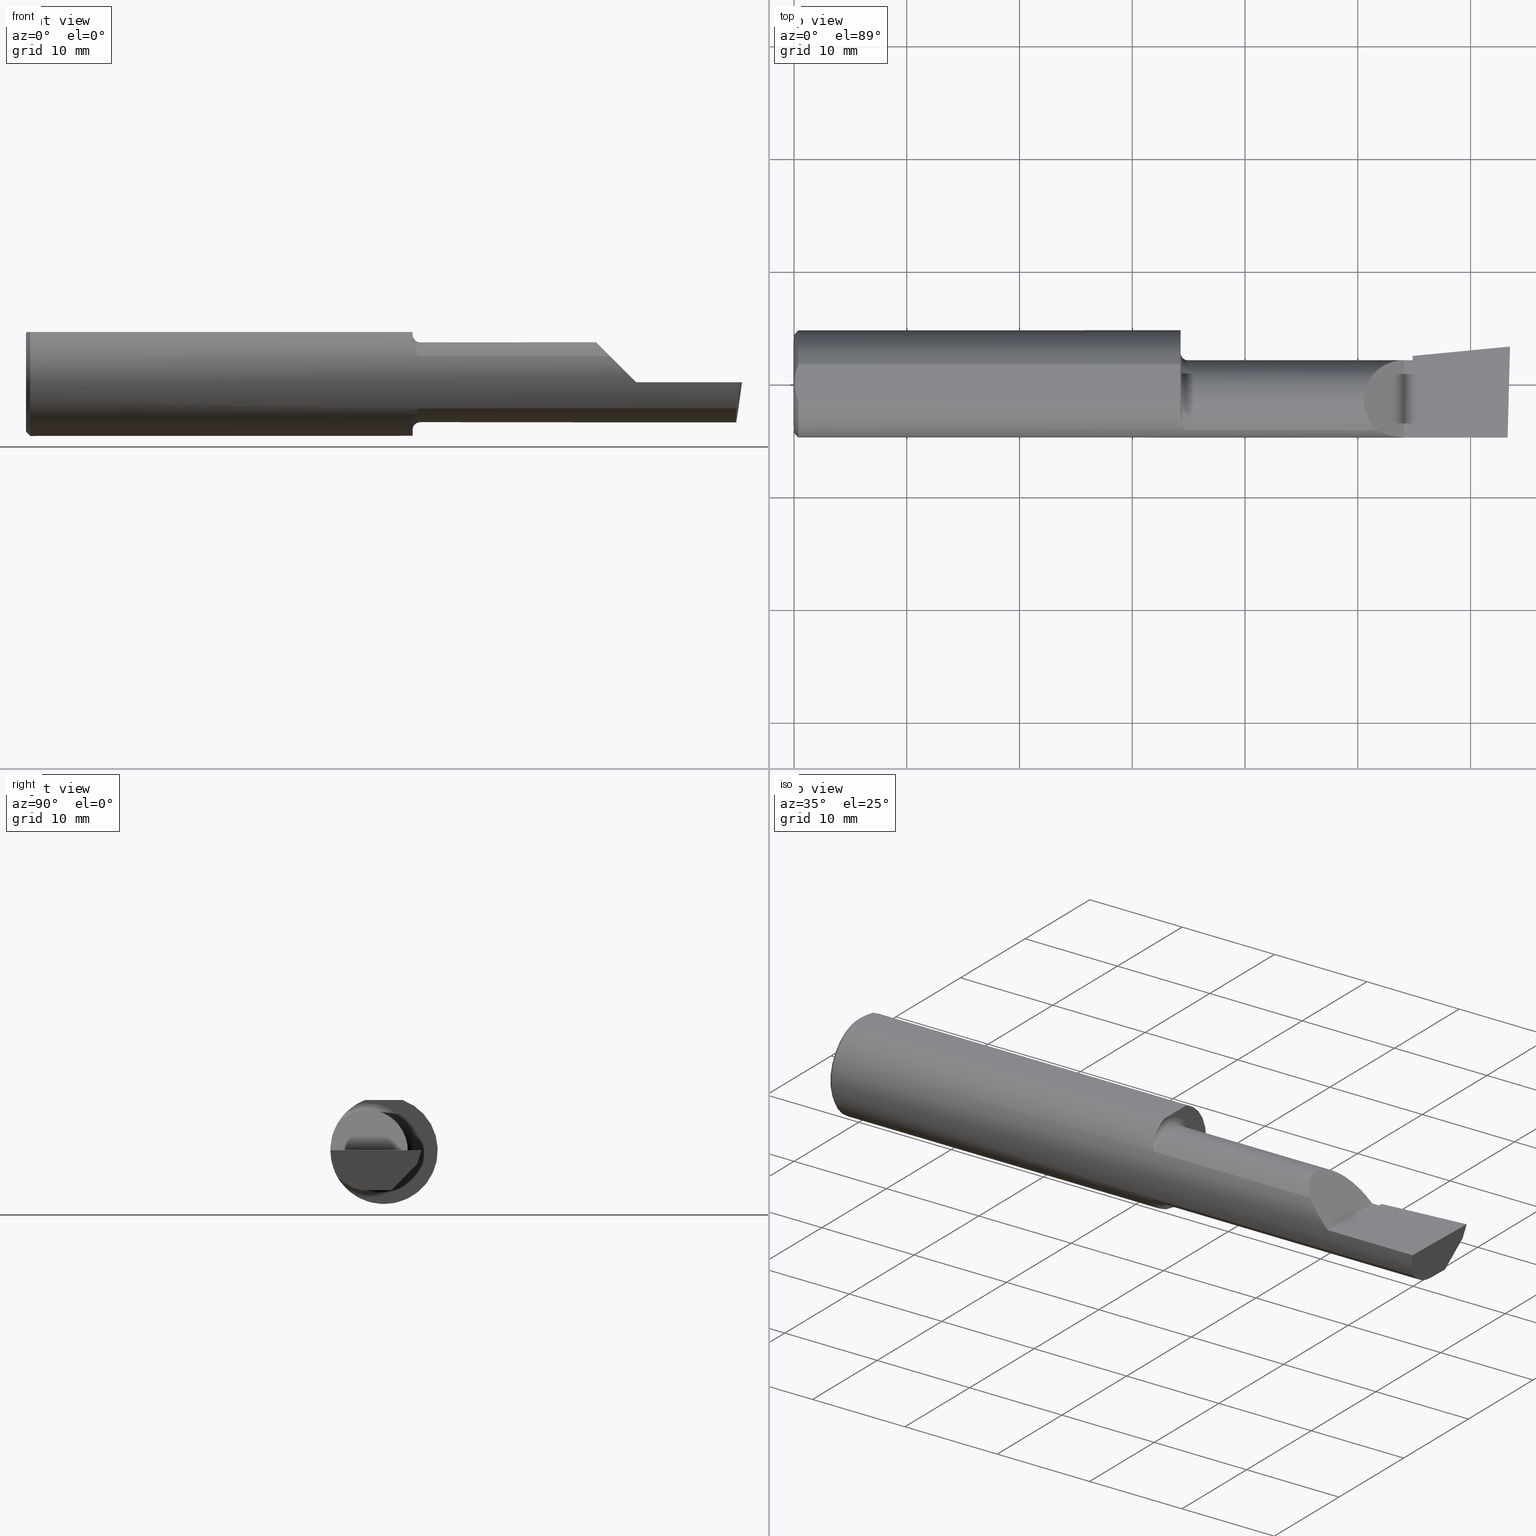
[diagram: canonical four-view strip — front | top / right | iso, engineering-drawing reading convention]
A machine part, canonical four-view strip (front | top / right | iso — engineering-drawing reading convention). The complete STEP part file that produces these views, byte-faithful:
ISO-10303-21;
HEADER;
FILE_DESCRIPTION (( 'STEP AP203' ),
    '1' );
FILE_NAME ('217483-B3201100.STEP',
    '2024-04-26T19:22:36',
    ( '' ),
    ( '' ),
    'SwSTEP 2.0',
    'SolidWorks 2022',
    '' );
FILE_SCHEMA (( 'CONFIG_CONTROL_DESIGN' ));
ENDSEC;

DATA;
#1 = CARTESIAN_POINT ( 'NONE',  ( 1.375000000000000000, -0.05740000000000000657, 0.000000000000000000 ) ) ;
#2 = EDGE_CURVE ( 'NONE', #565, #398, #52, .T. ) ;
#3 = B_SPLINE_CURVE_WITH_KNOTS ( 'NONE', 3,
 ( #516, #86, #189, #231, #9, #534, #380, #150, #422, #442, #573, #376, #489, #249 ),
 .UNSPECIFIED., .F., .F.,
 ( 4, 2, 2, 2, 2, 2, 4 ),
 ( 0.0002471551878304217224, 0.0008987327522055606026, 0.001550310316580699645, 0.002201887880955838254, 0.002527676663143406475, 0.002690571054237190368, 0.002853465445330974262 ),
 .UNSPECIFIED. ) ;
#4 = VECTOR ( 'NONE', #335, 39.37007874015748143 ) ;
#5 = CARTESIAN_POINT ( 'NONE',  ( 2.160000000000000142, -0.2500000000000000555, 1.034430765243970311E-16 ) ) ;
#6 = ADVANCED_FACE ( 'NONE', ( #515 ), #85, .F. ) ;
#7 = DIRECTION ( 'NONE',  ( 0.1053106618240635256, 0.6976485211320200275, 0.7086580314005359593 ) ) ;
#8 = ORIENTED_EDGE ( 'NONE', *, *, #126, .F. ) ;
#9 = CARTESIAN_POINT ( 'NONE',  ( 1.353025912205683357, -0.1310442973014113721, 0.1341609063345044484 ) ) ;
#10 = LINE ( 'NONE', #5, #608 ) ;
#11 = EDGE_LOOP ( 'NONE', ( #216, #279, #407, #417, #600, #201, #322, #625, #343, #109, #19, #45, #177 ) ) ;
#12 = VECTOR ( 'NONE', #104, 39.37007874015748854 ) ;
#13 = APPROVAL_STATUS ( 'not_yet_approved' ) ;
#14 = ADVANCED_FACE ( 'NONE', ( #309 ), #504, .F. ) ;
#15 = CARTESIAN_POINT ( 'NONE',  ( 2.481080296960508580, -0.1635956445993030639, -0.09130436773856169530 ) ) ;
#16 = EDGE_LOOP ( 'NONE', ( #603, #275, #510, #305, #207 ) ) ;
#17 = APPROVAL_STATUS ( 'not_yet_approved' ) ;
#18 = CARTESIAN_POINT ( 'NONE',  ( 2.491672876940991710, -0.1873499999999999888, 6.915950918908297591E-17 ) ) ;
#19 = ORIENTED_EDGE ( 'NONE', *, *, #462, .T. ) ;
#20 = CARTESIAN_POINT ( 'NONE',  ( 2.160000000000000142, -0.05739999999999999963, -0.1400500000000000633 ) ) ;
#21 = ADVANCED_FACE ( 'NONE', ( #364 ), #557, .T. ) ;
#22 = ORIENTED_EDGE ( 'NONE', *, *, #593, .F. ) ;
#23 = PERSON_AND_ORGANIZATION_ROLE ( 'design_supplier' ) ;
#24 = AXIS2_PLACEMENT_3D ( 'NONE', #64, #162, #592 ) ;
#25 = LINE ( 'NONE', #218, #377 ) ;
#26 = ORIENTED_EDGE ( 'NONE', *, *, #80, .T. ) ;
#27 = VECTOR ( 'NONE', #503, 39.37007874015748854 ) ;
#28 = LINE ( 'NONE', #599, #103 ) ;
#29 = ORIENTED_EDGE ( 'NONE', *, *, #114, .F. ) ;
#30 = LINE ( 'NONE', #225, #219 ) ;
#31 = ORIENTED_EDGE ( 'NONE', *, *, #32, .F. ) ;
#32 = EDGE_CURVE ( 'NONE', #538, #379, #523, .T. ) ;
#33 = VECTOR ( 'NONE', #134, 39.37007874015748143 ) ;
#34 = CARTESIAN_POINT ( 'NONE',  ( 2.160000000000000142, -0.05739999999999999963, 0.000000000000000000 ) ) ;
#35 = LINE ( 'NONE', #388, #362 ) ;
#36 = VERTEX_POINT ( 'NONE', #385 ) ;
#37 = APPROVAL_STATUS ( 'not_yet_approved' ) ;
#38 = AXIS2_PLACEMENT_3D ( 'NONE', #266, #349, #458 ) ;
#39 = CARTESIAN_POINT ( 'NONE',  ( 0.01499999999999999424, 0.000000000000000000, 0.000000000000000000 ) ) ;
#40 = DIRECTION ( 'NONE',  ( 0.000000000000000000, 0.000000000000000000, 1.000000000000000000 ) ) ;
#41 = ADVANCED_FACE ( 'NONE', ( #332 ), #567, .T. ) ;
#42 = EDGE_LOOP ( 'NONE', ( #269, #252, #562, #97 ) ) ;
#43 = CARTESIAN_POINT ( 'NONE',  ( 0.01499999999999999424, 0.000000000000000000, -0.1873499999999999888 ) ) ;
#44 = DIRECTION ( 'NONE',  ( 0.000000000000000000, 0.6963153109074925462, 0.7177360153954948085 ) ) ;
#45 = ORIENTED_EDGE ( 'NONE', *, *, #159, .F. ) ;
#46 = CIRCLE ( 'NONE', #325, 0.1400500000000000356 ) ;
#47 = CARTESIAN_POINT ( 'NONE',  ( 1.358068207442170383, -0.1478915270140208904, -0.1153063024254926405 ) ) ;
#48 = DIRECTION ( 'NONE',  ( -0.09165774897393341725, 0.9519021185660614393, -0.2923717047227303856 ) ) ;
#49 = EDGE_CURVE ( 'NONE', #288, #395, #148, .T. ) ;
#50 = CARTESIAN_POINT ( 'NONE',  ( 2.476787929832031221, -0.09887019258091189755, -0.1400500000000000078 ) ) ;
#51 = DIRECTION ( 'NONE',  ( -1.000000000000000000, -6.829619984160658046E-18, -0.000000000000000000 ) ) ;
#52 = CIRCLE ( 'NONE', #406, 0.1400500000000000356 ) ;
#53 = AXIS2_PLACEMENT_3D ( 'NONE', #509, #551, #556 ) ;
#54 = CARTESIAN_POINT ( 'NONE',  ( 2.160000000000000142, 0.09791172361284175563, 3.308097179827818849E-16 ) ) ;
#55 = ORIENTED_EDGE ( 'NONE', *, *, #495, .F. ) ;
#56 = DIRECTION ( 'NONE',  ( 0.000000000000000000, -1.000000000000000000, 0.000000000000000000 ) ) ;
#57 = CYLINDRICAL_SURFACE ( 'NONE', #525, 0.1400499999999999801 ) ;
#58 = VERTEX_POINT ( 'NONE', #526 ) ;
#59 = ADVANCED_FACE ( 'NONE', ( #96 ), #242, .T. ) ;
#60 = PERSON_AND_ORGANIZATION_ROLE ( 'design_owner' ) ;
#61 = LOCAL_TIME ( 12, 22, 36.00000000000000000, #419 ) ;
#62 = DIRECTION ( 'NONE',  ( -1.000000000000000000, -6.829619984160658046E-18, -0.000000000000000000 ) ) ;
#63 = ORIENTED_EDGE ( 'NONE', *, *, #49, .F. ) ;
#64 = CARTESIAN_POINT ( 'NONE',  ( 2.475850273311264615, -0.1244607267090816621, -0.1422282308645907711 ) ) ;
#65 = ORIENTED_EDGE ( 'NONE', *, *, #524, .F. ) ;
#66 = PERSON_AND_ORGANIZATION ( #198, #387 ) ;
#67 = EDGE_CURVE ( 'NONE', #124, #271, #400, .T. ) ;
#68 = PLANE ( 'NONE',  #94 ) ;
#69 = ORIENTED_EDGE ( 'NONE', *, *, #507, .F. ) ;
#70 =( GEOMETRIC_REPRESENTATION_CONTEXT ( 3 ) GLOBAL_UNCERTAINTY_ASSIGNED_CONTEXT ( ( #182 ) ) GLOBAL_UNIT_ASSIGNED_CONTEXT ( ( #404, #452, #595 ) ) REPRESENTATION_CONTEXT ( 'NONE', 'WORKASPACE' ) );
#71 = PERSON_AND_ORGANIZATION ( #198, #387 ) ;
#72 = DIRECTION ( 'NONE',  ( 0.000000000000000000, 0.000000000000000000, 1.000000000000000000 ) ) ;
#73 = APPROVAL ( #13, 'UNSPECIFIED' ) ;
#74 = VERTEX_POINT ( 'NONE', #433 ) ;
#75 = CARTESIAN_POINT ( 'NONE',  ( 0.000000000000000000, 0.000000000000000000, 0.000000000000000000 ) ) ;
#76 = VERTEX_POINT ( 'NONE', #435 ) ;
#77 = VECTOR ( 'NONE', #460, 39.37007874015748143 ) ;
#78 = DIRECTION ( 'NONE',  ( -1.000000000000000000, -0.000000000000000000, -0.000000000000000000 ) ) ;
#79 = EDGE_LOOP ( 'NONE', ( #298, #187, #224, #597 ) ) ;
#80 = EDGE_CURVE ( 'NONE', #259, #382, #238, .T. ) ;
#81 = PLANE ( 'NONE',  #53 ) ;
#82 = ORIENTED_EDGE ( 'NONE', *, *, #424, .F. ) ;
#83 = DATE_AND_TIME ( #327, #61 ) ;
#84 = DIRECTION ( 'NONE',  ( -0.9953961983671800740, -0.09584575252021031166, 0.000000000000000000 ) ) ;
#85 = PLANE ( 'NONE',  #598 ) ;
#86 = CARTESIAN_POINT ( 'NONE',  ( 1.350000000000000311, -0.1045012500212953166, 0.1557348687830035772 ) ) ;
#87 = EDGE_CURVE ( 'NONE', #398, #259, #244, .T. ) ;
#88 = CYLINDRICAL_SURFACE ( 'NONE', #547, 0.1873499999999999888 ) ;
#89 = DATE_AND_TIME ( #466, #606 ) ;
#90 = CIRCLE ( 'NONE', #260, 0.1873499999999999888 ) ;
#91 = DIRECTION ( 'NONE',  ( 0.000000000000000000, 0.000000000000000000, 1.000000000000000000 ) ) ;
#92 = CARTESIAN_POINT ( 'NONE',  ( 0.003000000000000218638, 2.334609556160449697E-17, 0.1753499999999999781 ) ) ;
#93 = CARTESIAN_POINT ( 'NONE',  ( 1.375000000000000000, -0.1635956445993029251, -0.09130436773856182020 ) ) ;
#94 = AXIS2_PLACEMENT_3D ( 'NONE', #444, #108, #304 ) ;
#95 = CARTESIAN_POINT ( 'NONE',  ( 2.509953961983671711, 0.1316084575252021438, -6.829619984160658046E-17 ) ) ;
#96 = FACE_OUTER_BOUND ( 'NONE', #549, .T. ) ;
#97 = ORIENTED_EDGE ( 'NONE', *, *, #375, .T. ) ;
#98 = PRODUCT_RELATED_PRODUCT_CATEGORY ( 'detail', '', ( #463 ) ) ;
#99 = FACE_OUTER_BOUND ( 'NONE', #316, .T. ) ;
#100 = ORIENTED_EDGE ( 'NONE', *, *, #621, .T. ) ;
#101 = AXIS2_PLACEMENT_3D ( 'NONE', #397, #199, #394 ) ;
#102 = CARTESIAN_POINT ( 'NONE',  ( 2.477873865042410806, -0.05739999999999999963, -0.1400500000000000633 ) ) ;
#103 = VECTOR ( 'NONE', #321, 39.37007874015748143 ) ;
#104 = DIRECTION ( 'NONE',  ( 0.1240019227988267692, 0.3022330132596590113, 0.9451342385281470415 ) ) ;
#105 = EDGE_CURVE ( 'NONE', #74, #36, #482, .T. ) ;
#106 = EDGE_LOOP ( 'NONE', ( #29, #541, #8, #100, #586, #144, #613, #620, #502, #31 ) ) ;
#107 =( LENGTH_UNIT ( ) NAMED_UNIT ( * ) SI_UNIT ( $, .METRE. ) );
#108 = DIRECTION ( 'NONE',  ( 0.000000000000000000, -1.438723400918613551E-16, -1.000000000000000000 ) ) ;
#109 = ORIENTED_EDGE ( 'NONE', *, *, #555, .F. ) ;
#110 = CALENDAR_DATE ( 2024, 26, 4 ) ;
#111 = LOCAL_TIME ( 12, 22, 36.00000000000000000, #542 ) ;
#112 = DIRECTION ( 'NONE',  ( 1.000000000000000000, 6.829619984160658046E-18, 0.000000000000000000 ) ) ;
#113 = ORIENTED_EDGE ( 'NONE', *, *, #67, .T. ) ;
#114 = EDGE_CURVE ( 'NONE', #175, #538, #337, .T. ) ;
#115 = ORIENTED_EDGE ( 'NONE', *, *, #320, .T. ) ;
#116 = EDGE_CURVE ( 'NONE', #395, #318, #530, .T. ) ;
#117 = LINE ( 'NONE', #308, #27 ) ;
#118 = DIRECTION ( 'NONE',  ( -0.7071067811865511255, 0.000000000000000000, 0.7071067811865437980 ) ) ;
#119 = VECTOR ( 'NONE', #429, 39.37007874015748143 ) ;
#120 = PERSON_AND_ORGANIZATION ( #198, #387 ) ;
#121 = APPLICATION_CONTEXT ( 'configuration controlled 3d designs of mechanical parts and assemblies' ) ;
#122 = CARTESIAN_POINT ( 'NONE',  ( 2.160000000000000142, -0.05739999999999999963, 0.000000000000000000 ) ) ;
#123 = ADVANCED_BREP_SHAPE_REPRESENTATION ( '217483-B3201100', ( #491, #38 ), #70 ) ;
#124 = VERTEX_POINT ( 'NONE', #92 ) ;
#125 = CARTESIAN_POINT ( 'NONE',  ( 2.500000000000000000, -0.05739999999999999963, -0.1400500000000000633 ) ) ;
#126 = EDGE_CURVE ( 'NONE', #488, #607, #568, .T. ) ;
#127 = ORIENTED_EDGE ( 'NONE', *, *, #116, .F. ) ;
#128 = DIRECTION ( 'NONE',  ( -4.858719700838190352E-34, -8.537024980200821325E-17, 1.000000000000000000 ) ) ;
#129 = ORIENTED_EDGE ( 'NONE', *, *, #289, .T. ) ;
#130 = CARTESIAN_POINT ( 'NONE',  ( 0.01499999999999997863, -0.06597272163553657975, 0.1753499999999999781 ) ) ;
#131 = DIRECTION ( 'NONE',  ( 0.000000000000000000, -1.000000000000000000, 0.000000000000000000 ) ) ;
#132 = AXIS2_PLACEMENT_3D ( 'NONE', #265, #457, #220 ) ;
#133 = CARTESIAN_POINT ( 'NONE',  ( 1.356145841430604237, -0.1426194794824337531, -0.1217813759115469463 ) ) ;
#134 = DIRECTION ( 'NONE',  ( 6.829619984160658046E-18, -1.000000000000000000, 1.438723400918613551E-16 ) ) ;
#135 = APPROVAL_DATE_TIME ( #83, #311 ) ;
#136 = CIRCLE ( 'NONE', #188, 0.1873499999999999888 ) ;
#137 = ADVANCED_FACE ( 'NONE', ( #484 ), #431, .T. ) ;
#138 = DIRECTION ( 'NONE',  ( 2.005228508682076666E-18, -0.2936076258024060692, -0.9559260233253795702 ) ) ;
#139 = CARTESIAN_POINT ( 'NONE',  ( 2.066758987970638284, -0.1792580844883770730, 0.06324101202936138755 ) ) ;
#140 = ORIENTED_EDGE ( 'NONE', *, *, #2, .F. ) ;
#141 = CARTESIAN_POINT ( 'NONE',  ( 0.000000000000000000, -0.06597272163553657975, 0.1753499999999999781 ) ) ;
#142 = CC_DESIGN_APPROVAL ( #73, ( #339 ) ) ;
#143 = CARTESIAN_POINT ( 'NONE',  ( 2.500000000000000000, -0.05739999999999999963, -0.1400500000000000633 ) ) ;
#144 = ORIENTED_EDGE ( 'NONE', *, *, #574, .T. ) ;
#145 = CIRCLE ( 'NONE', #101, 0.1873499999999999888 ) ;
#146 = CARTESIAN_POINT ( 'NONE',  ( 0.008244775919947424855, 0.04453482769755855164, 0.1753499999999999504 ) ) ;
#147 = ADVANCED_FACE ( 'NONE', ( #517 ), #88, .T. ) ;
#148 = LINE ( 'NONE', #281, #4 ) ;
#149 = CARTESIAN_POINT ( 'NONE',  ( 0.01499999999999999424, 0.000000000000000000, 0.000000000000000000 ) ) ;
#150 = CARTESIAN_POINT ( 'NONE',  ( 1.362204638458737405, -0.1550630761760522225, 0.1052254855377564996 ) ) ;
#151 = ADVANCED_FACE ( 'NONE', ( #426 ), #378, .T. ) ;
#152 = CARTESIAN_POINT ( 'NONE',  ( 2.481080296960508580, -0.1635956445993030639, -0.09130436773856169530 ) ) ;
#153 = ORIENTED_EDGE ( 'NONE', *, *, #336, .F. ) ;
#154 = CARTESIAN_POINT ( 'NONE',  ( 2.160000000000000142, 0.09456875743780475407, -0.01088401009027229610 ) ) ;
#155 = VECTOR ( 'NONE', #174, 39.37007874015748143 ) ;
#156 = CARTESIAN_POINT ( 'NONE',  ( 2.484117089522337452, -0.1792580844883771285, -0.06324101202936134591 ) ) ;
#157 = ORIENTED_EDGE ( 'NONE', *, *, #384, .F. ) ;
#158 = CARTESIAN_POINT ( 'NONE',  ( 1.375000000000000000, -0.1635956445993029251, -0.09130436773856182020 ) ) ;
#159 = EDGE_CURVE ( 'NONE', #210, #74, #277, .T. ) ;
#160 = EDGE_LOOP ( 'NONE', ( #226, #421, #167, #508 ) ) ;
#161 = PERSON_AND_ORGANIZATION_ROLE ( 'creator' ) ;
#162 = DIRECTION ( 'NONE',  ( -0.9922060308645608284, 0.02598182930461468559, 0.1218693434050591162 ) ) ;
#163 = ORIENTED_EDGE ( 'NONE', *, *, #347, .F. ) ;
#164 = AXIS2_PLACEMENT_3D ( 'NONE', #95, #48, #235 ) ;
#165 = APPLICATION_PROTOCOL_DEFINITION ( 'international standard', 'config_control_design', 1994, #333 ) ;
#166 = CARTESIAN_POINT ( 'NONE',  ( 1.921229036482944075, -0.06260079402492431389, 0.2087709635170537925 ) ) ;
#167 = ORIENTED_EDGE ( 'NONE', *, *, #193, .T. ) ;
#168 = DATE_TIME_ROLE ( 'creation_date' ) ;
#169 = DIRECTION ( 'NONE',  ( 0.000000000000000000, -1.000000000000000000, 0.000000000000000000 ) ) ;
#170 = EDGE_LOOP ( 'NONE', ( #157, #22, #470, #312, #411 ) ) ;
#171 = CIRCLE ( 'NONE', #519, 0.1723499999999996424 ) ;
#172 = SECURITY_CLASSIFICATION ( '', '', #408 ) ;
#173 = ADVANCED_FACE ( 'NONE', ( #99 ), #585, .F. ) ;
#174 = DIRECTION ( 'NONE',  ( -0.000000000000000000, 1.000000000000000000, -0.000000000000000000 ) ) ;
#175 = VERTEX_POINT ( 'NONE', #15 ) ;
#176 = DIRECTION ( 'NONE',  ( 0.7071067811865390240, 8.659560562355036396E-17, 0.7071067811865560104 ) ) ;
#177 = ORIENTED_EDGE ( 'NONE', *, *, #601, .F. ) ;
#178 = CARTESIAN_POINT ( 'NONE',  ( 1.975085956200449022, 0.08264999999999997349, 0.1549140437995493169 ) ) ;
#179 = VERTEX_POINT ( 'NONE', #261 ) ;
#180 = DIRECTION ( 'NONE',  ( -1.000000000000000000, -0.000000000000000000, -0.000000000000000000 ) ) ;
#181 = DIRECTION ( 'NONE',  ( -6.829619984160658046E-18, 1.000000000000000000, 0.000000000000000000 ) ) ;
#182 = UNCERTAINTY_MEASURE_WITH_UNIT (LENGTH_MEASURE( 1.000000000000000082E-05 ), #404, 'distance_accuracy_value', 'NONE');
#183 = PERSON_AND_ORGANIZATION_ROLE ( 'classification_officer' ) ;
#184 = CC_DESIGN_PERSON_AND_ORGANIZATION_ASSIGNMENT ( #412, #60, ( #463 ) ) ;
#185 = DIRECTION ( 'NONE',  ( -1.033731667140896077E-16, 0.000000000000000000, -1.000000000000000000 ) ) ;
#186 = CARTESIAN_POINT ( 'NONE',  ( 2.481080296960508580, -0.1635956445993030639, -0.09130436773856169530 ) ) ;
#187 = ORIENTED_EDGE ( 'NONE', *, *, #126, .T. ) ;
#188 = AXIS2_PLACEMENT_3D ( 'NONE', #564, #78, #270 ) ;
#189 = CARTESIAN_POINT ( 'NONE',  ( 1.350383728133730532, -0.1114837668894150813, 0.1508119329971097655 ) ) ;
#190 = CARTESIAN_POINT ( 'NONE',  ( 0.003000000000000218638, 2.334609556160449697E-17, 0.1753499999999999781 ) ) ;
#191 = ORIENTED_EDGE ( 'NONE', *, *, #375, .F. ) ;
#192 = CARTESIAN_POINT ( 'NONE',  ( 2.500000000000000000, -0.2500000000000000555, 6.829619984160658046E-17 ) ) ;
#193 = EDGE_CURVE ( 'NONE', #36, #545, #145, .T. ) ;
#194 = APPROVAL_PERSON_ORGANIZATION ( #471, #311, #276 ) ;
#195 = DIRECTION ( 'NONE',  ( -1.000000000000000000, -6.829619984160658046E-18, 0.000000000000000000 ) ) ;
#196 = AXIS2_PLACEMENT_3D ( 'NONE', #578, #576, #44 ) ;
#197 = CARTESIAN_POINT ( 'NONE',  ( 2.129999999999999893, -0.1873499999999999888, 1.065442715258197396E-16 ) ) ;
#198 = PERSON ( 'UNSPECIFIED', 'UNSPECIFIED', 'UNSPECIFIED', ('UNSPECIFIED'), ('UNSPECIFIED'), ('UNSPECIFIED') ) ;
#199 = DIRECTION ( 'NONE',  ( 1.000000000000000000, 6.829619984160658046E-18, 0.000000000000000000 ) ) ;
#200 = B_SPLINE_CURVE_WITH_KNOTS ( 'NONE', 3,
 ( #386, #258, #346, #301, #206, #548 ),
 .UNSPECIFIED., .F., .F.,
 ( 4, 2, 4 ),
 ( 0.001779942938356815062, 0.002629978419973711019, 0.003480013901590607410 ),
 .UNSPECIFIED. ) ;
#201 = ORIENTED_EDGE ( 'NONE', *, *, #581, .F. ) ;
#202 = VECTOR ( 'NONE', #618, 39.37007874015748143 ) ;
#203 = CARTESIAN_POINT ( 'NONE',  ( 2.038695632261437130, -0.1635956445993029529, 0.09130436773856188959 ) ) ;
#204 = ORIENTED_EDGE ( 'NONE', *, *, #593, .T. ) ;
#205 = LINE ( 'NONE', #571, #268 ) ;
#206 = CARTESIAN_POINT ( 'NONE',  ( 0.003000000000000172667, -0.01126410975715121283, 0.1753500000000000059 ) ) ;
#207 = ORIENTED_EDGE ( 'NONE', *, *, #546, .F. ) ;
#208 = APPROVAL_ROLE ( '' ) ;
#209 = DIRECTION ( 'NONE',  ( 0.000000000000000000, 1.000000000000000000, 0.000000000000000000 ) ) ;
#210 = VERTEX_POINT ( 'NONE', #340 ) ;
#211 = MECHANICAL_CONTEXT ( 'NONE', #121, 'mechanical' ) ;
#212 = DIRECTION ( 'NONE',  ( -1.000000000000000000, -6.829619984160658046E-18, -0.000000000000000000 ) ) ;
#213 = CC_DESIGN_PERSON_AND_ORGANIZATION_ASSIGNMENT ( #236, #183, ( #172 ) ) ;
#214 = ORIENTED_EDGE ( 'NONE', *, *, #232, .F. ) ;
#215 = LINE ( 'NONE', #369, #155 ) ;
#216 = ORIENTED_EDGE ( 'NONE', *, *, #531, .F. ) ;
#217 = VECTOR ( 'NONE', #627, 39.37007874015748854 ) ;
#218 = CARTESIAN_POINT ( 'NONE',  ( 2.160000000000000142, 0.06382066673065313334, -0.06931012851386068874 ) ) ;
#219 = VECTOR ( 'NONE', #228, 39.37007874015748143 ) ;
#220 = DIRECTION ( 'NONE',  ( 6.829619984160658046E-18, -1.000000000000000000, 0.000000000000000000 ) ) ;
#221 = APPLICATION_PROTOCOL_DEFINITION ( 'international standard', 'config_control_design', 1994, #121 ) ;
#222 = ADVANCED_FACE ( 'NONE', ( #297 ), #478, .T. ) ;
#223 = CARTESIAN_POINT ( 'NONE',  ( 2.129999999999999893, -0.1873499999999999888, 1.065442715258197396E-16 ) ) ;
#224 = ORIENTED_EDGE ( 'NONE', *, *, #601, .T. ) ;
#225 = CARTESIAN_POINT ( 'NONE',  ( 0.000000000000000000, 0.06597272163553663527, 0.1753499999999999781 ) ) ;
#226 = ORIENTED_EDGE ( 'NONE', *, *, #159, .T. ) ;
#227 = VECTOR ( 'NONE', #7, 39.37007874015748854 ) ;
#228 = DIRECTION ( 'NONE',  ( 1.000000000000000000, 0.000000000000000000, 0.000000000000000000 ) ) ;
#229 = ADVANCED_FACE ( 'NONE', ( #490 ), #579, .F. ) ;
#230 = DIRECTION ( 'NONE',  ( -1.000000000000000000, -6.829619984160658046E-18, -0.000000000000000000 ) ) ;
#231 = CARTESIAN_POINT ( 'NONE',  ( 1.351891754936544787, -0.1247344934163566177, 0.1400506178720502537 ) ) ;
#232 = EDGE_CURVE ( 'NONE', #498, #58, #544, .T. ) ;
#233 = ORIENTED_EDGE ( 'NONE', *, *, #289, .F. ) ;
#234 = DIRECTION ( 'NONE',  ( 0.000000000000000000, 0.000000000000000000, 1.000000000000000000 ) ) ;
#235 = DIRECTION ( 'NONE',  ( 0.000000000000000000, 0.2936076258024060692, 0.9559260233253795702 ) ) ;
#236 = PERSON_AND_ORGANIZATION ( #198, #387 ) ;
#237 = CARTESIAN_POINT ( 'NONE',  ( 2.160000000000000142, 0.08265000000000004288, 3.267291166268306182E-16 ) ) ;
#238 = LINE ( 'NONE', #619, #418 ) ;
#239 = CONICAL_SURFACE ( 'NONE', #459, 0.1873499999999999888, 0.7853981633974602694 ) ;
#240 = DIRECTION ( 'NONE',  ( -1.000000000000000000, -6.829619984160658046E-18, -0.000000000000000000 ) ) ;
#241 = CARTESIAN_POINT ( 'NONE',  ( 0.004115035183746292881, 0.02255629470626744487, 0.1753499999999999781 ) ) ;
#242 = PLANE ( 'NONE',  #485 ) ;
#243 = ORIENTED_EDGE ( 'NONE', *, *, #507, .T. ) ;
#244 = LINE ( 'NONE', #287, #217 ) ;
#245 = EDGE_CURVE ( 'NONE', #468, #124, #200, .T. ) ;
#246 = LINE ( 'NONE', #438, #227 ) ;
#247 = CC_DESIGN_PERSON_AND_ORGANIZATION_ASSIGNMENT ( #455, #23, ( #251 ) ) ;
#248 = ORIENTED_EDGE ( 'NONE', *, *, #87, .T. ) ;
#249 = CARTESIAN_POINT ( 'NONE',  ( 1.375000000000000000, -0.1635956445993028141, 0.09130436773856194510 ) ) ;
#250 = FACE_OUTER_BOUND ( 'NONE', #16, .T. ) ;
#251 = PRODUCT_DEFINITION_FORMATION_WITH_SPECIFIED_SOURCE ( 'ANY', '', #463, .NOT_KNOWN. ) ;
#252 = ORIENTED_EDGE ( 'NONE', *, *, #299, .T. ) ;
#253 = CARTESIAN_POINT ( 'NONE',  ( 0.01499999999999999424, 0.06597272163553663527, 0.1753499999999999781 ) ) ;
#254 = AXIS2_PLACEMENT_3D ( 'NONE', #493, #112, #209 ) ;
#255 = EDGE_LOOP ( 'NONE', ( #204, #115 ) ) ;
#256 = DATE_AND_TIME ( #399, #111 ) ;
#257 = EDGE_CURVE ( 'NONE', #175, #288, #575, .T. ) ;
#258 = CARTESIAN_POINT ( 'NONE',  ( 0.01128414053810044941, -0.05542038647445821781, 0.1753499999999999781 ) ) ;
#259 = VERTEX_POINT ( 'NONE', #540 ) ;
#260 = AXIS2_PLACEMENT_3D ( 'NONE', #39, #328, #91 ) ;
#261 = CARTESIAN_POINT ( 'NONE',  ( 0.000000000000000000, 0.000000000000000000, -0.1723499999999996424 ) ) ;
#262 = EDGE_LOOP ( 'NONE', ( #214, #403, #65, #243 ) ) ;
#263 = PERSON_AND_ORGANIZATION_ROLE ( 'creator' ) ;
#264 = CARTESIAN_POINT ( 'NONE',  ( 1.375000000000000000, -0.1635956445993028141, 0.09130436773856194510 ) ) ;
#265 = CARTESIAN_POINT ( 'NONE',  ( 2.160000000000000142, 0.09791172361283667636, 0.000000000000000000 ) ) ;
#266 = CARTESIAN_POINT ( 'NONE',  ( 0.000000000000000000, 0.000000000000000000, 0.000000000000000000 ) ) ;
#267 = FACE_OUTER_BOUND ( 'NONE', #292, .T. ) ;
#268 = VECTOR ( 'NONE', #345, 39.37007874015748143 ) ;
#269 = ORIENTED_EDGE ( 'NONE', *, *, #415, .F. ) ;
#270 = DIRECTION ( 'NONE',  ( 0.000000000000000000, 0.000000000000000000, 1.000000000000000000 ) ) ;
#271 = VERTEX_POINT ( 'NONE', #253 ) ;
#272 = CC_DESIGN_APPROVAL ( #500, ( #251 ) ) ;
#273 = ADVANCED_FACE ( 'NONE', ( #446 ), #57, .T. ) ;
#274 = CARTESIAN_POINT ( 'NONE',  ( 0.01499999999999999424, 0.000000000000000000, 0.000000000000000000 ) ) ;
#275 = ORIENTED_EDGE ( 'NONE', *, *, #462, .F. ) ;
#276 = APPROVAL_ROLE ( '' ) ;
#277 = CIRCLE ( 'NONE', #254, 0.1873499999999999888 ) ;
#278 = DIRECTION ( 'NONE',  ( -1.000000000000000000, 0.000000000000000000, 1.033731667140896077E-16 ) ) ;
#279 = ORIENTED_EDGE ( 'NONE', *, *, #257, .T. ) ;
#280 = CARTESIAN_POINT ( 'NONE',  ( 1.350000000000000089, -0.1045082199249680460, -0.1557306416133593940 ) ) ;
#281 = CARTESIAN_POINT ( 'NONE',  ( 3.377502344341257155E-32, -0.1873499999999999610, 3.267291166268304703E-16 ) ) ;
#282 = DIRECTION ( 'NONE',  ( 4.755568962650853567E-18, -0.6963153109074925462, -0.7177360153954946975 ) ) ;
#283 = DIRECTION ( 'NONE',  ( 1.000000000000000000, 6.829619984160658046E-18, 0.000000000000000000 ) ) ;
#284 = ADVANCED_FACE ( 'NONE', ( #250 ), #68, .F. ) ;
#285 = CARTESIAN_POINT ( 'NONE',  ( 1.370881499230869771, -0.1628722075910989942, -0.09260290410947884243 ) ) ;
#286 = CARTESIAN_POINT ( 'NONE',  ( 2.160000000000000142, 0.09791172361283667636, 0.000000000000000000 ) ) ;
#287 = CARTESIAN_POINT ( 'NONE',  ( 2.160000000000000142, 0.06382066673065313334, -0.06931012851386068874 ) ) ;
#288 = VERTEX_POINT ( 'NONE', #501 ) ;
#289 = EDGE_CURVE ( 'NONE', #565, #303, #10, .T. ) ;
#290 = CARTESIAN_POINT ( 'NONE',  ( 2.038695632261437130, -0.1635956445993029529, 0.09130436773856188959 ) ) ;
#291 = CARTESIAN_POINT ( 'NONE',  ( 2.477889026591898247, -0.05682100378451882677, -0.1400500000000000633 ) ) ;
#292 = EDGE_LOOP ( 'NONE', ( #367, #475, #113, #355, #153 ) ) ;
#293 = AXIS2_PLACEMENT_3D ( 'NONE', #75, #605, #72 ) ;
#294 = CARTESIAN_POINT ( 'NONE',  ( 1.350000000000000089, -0.09715400696864118224, 0.1601908905959924245 ) ) ;
#295 = CARTESIAN_POINT ( 'NONE',  ( 2.487725449370724817, -0.1873500000000000443, -0.03213820089768505694 ) ) ;
#296 = EDGE_LOOP ( 'NONE', ( #439, #127, #494 ) ) ;
#297 = FACE_OUTER_BOUND ( 'NONE', #170, .T. ) ;
#298 = ORIENTED_EDGE ( 'NONE', *, *, #581, .T. ) ;
#299 = EDGE_CURVE ( 'NONE', #461, #538, #532, .T. ) ;
#300 = CALENDAR_DATE ( 2024, 26, 4 ) ;
#301 = CARTESIAN_POINT ( 'NONE',  ( 0.004093196532652216939, -0.02240707710020816909, 0.1753499999999999504 ) ) ;
#302 = AXIS2_PLACEMENT_3D ( 'NONE', #437, #283, #181 ) ;
#303 = VERTEX_POINT ( 'NONE', #54 ) ;
#304 = DIRECTION ( 'NONE',  ( 0.000000000000000000, 1.000000000000000000, -1.438723400918613551E-16 ) ) ;
#305 = ORIENTED_EDGE ( 'NONE', *, *, #245, .F. ) ;
#306 = CARTESIAN_POINT ( 'NONE',  ( 1.767500000000000293, -0.1635956445993030639, 0.09130436773856169530 ) ) ;
#307 = EDGE_CURVE ( 'NONE', #461, #498, #246, .T. ) ;
#308 = CARTESIAN_POINT ( 'NONE',  ( 2.490039159128059953, -0.2497391662021650194, 6.932588350567417155E-17 ) ) ;
#309 = FACE_OUTER_BOUND ( 'NONE', #427, .T. ) ;
#310 = DIRECTION ( 'NONE',  ( 1.000000000000000000, 0.000000000000000000, 0.000000000000000000 ) ) ;
#311 = APPROVAL ( #37, 'UNSPECIFIED' ) ;
#312 = ORIENTED_EDGE ( 'NONE', *, *, #449, .T. ) ;
#313 = DATE_TIME_ROLE ( 'classification_date' ) ;
#314 = DIRECTION ( 'NONE',  ( 0.000000000000000000, -1.000000000000000000, -8.537024980200821325E-17 ) ) ;
#315 = CIRCLE ( 'NONE', #293, 0.1723499999999996424 ) ;
#316 = EDGE_LOOP ( 'NONE', ( #533, #372, #390, #590, #451, #492 ) ) ;
#317 = PLANE ( 'NONE',  #537 ) ;
#318 = VERTEX_POINT ( 'NONE', #203 ) ;
#319 = COORDINATED_UNIVERSAL_TIME_OFFSET ( 8, 0, .BEHIND. ) ;
#320 = EDGE_CURVE ( 'NONE', #594, #179, #315, .T. ) ;
#321 = DIRECTION ( 'NONE',  ( 0.000000000000000000, 1.000000000000000000, 8.537024980200821325E-17 ) ) ;
#322 = ORIENTED_EDGE ( 'NONE', *, *, #193, .F. ) ;
#323 = CLOSED_SHELL ( 'NONE', ( #357, #151, #59, #434, #147, #284, #513, #6, #440, #222, #229, #137, #273, #41, #21, #14, #173 ) ) ;
#324 = CARTESIAN_POINT ( 'NONE',  ( 1.350384441902395372, -0.1115101367984838859, -0.1507946173152224789 ) ) ;
#325 = AXIS2_PLACEMENT_3D ( 'NONE', #456, #358, #410 ) ;
#326 = DIRECTION ( 'NONE',  ( 0.000000000000000000, -1.000000000000000000, 0.000000000000000000 ) ) ;
#327 = CALENDAR_DATE ( 2024, 26, 4 ) ;
#328 = DIRECTION ( 'NONE',  ( -1.000000000000000000, -0.000000000000000000, -0.000000000000000000 ) ) ;
#329 = EDGE_CURVE ( 'NONE', #318, #527, #487, .T. ) ;
#330 = LOCAL_TIME ( 12, 22, 36.00000000000000000, #356 ) ;
#331 = CARTESIAN_POINT ( 'NONE',  ( 0.000000000000000000, 0.000000000000000000, 0.000000000000000000 ) ) ;
#332 = FACE_OUTER_BOUND ( 'NONE', #262, .T. ) ;
#333 = APPLICATION_CONTEXT ( 'configuration controlled 3d designs of mechanical parts and assemblies' ) ;
#334 = AXIS2_PLACEMENT_3D ( 'NONE', #389, #497, #596 ) ;
#335 = DIRECTION ( 'NONE',  ( -1.000000000000000000, -0.000000000000000000, -0.000000000000000000 ) ) ;
#336 = EDGE_CURVE ( 'NONE', #179, #577, #506, .T. ) ;
#337 =( BOUNDED_CURVE ( )  B_SPLINE_CURVE ( 3, ( #186, #528, #50, #477 ),
 .UNSPECIFIED., .F., .T. ) 
 B_SPLINE_CURVE_WITH_KNOTS ( ( 4, 4 ),
 ( 5.632580117768154260, 6.493234751459282528 ),
 .UNSPECIFIED. ) 
 CURVE ( )  GEOMETRIC_REPRESENTATION_ITEM ( )  RATIONAL_B_SPLINE_CURVE ( ( 1.000000000000000000, 0.9392195014330942948, 0.9392195014330942948, 1.000000000000000000 ) ) 
 REPRESENTATION_ITEM ( '' )  );
#338 = CARTESIAN_POINT ( 'NONE',  ( 0.01499999999999999424, 0.06597272163553663527, 0.1753499999999999781 ) ) ;
#339 = PRODUCT_DEFINITION ( 'UNKNOWN', '', #251, #569 ) ;
#340 = CARTESIAN_POINT ( 'NONE',  ( 1.350000000000000089, -0.09715400696864118224, -0.1601908905959924245 ) ) ;
#341 = LINE ( 'NONE', #584, #202 ) ;
#342 = CARTESIAN_POINT ( 'NONE',  ( 1.375000000000000000, -0.05740000000000001351, 0.000000000000000000 ) ) ;
#343 = ORIENTED_EDGE ( 'NONE', *, *, #449, .F. ) ;
#344 = AXIS2_PLACEMENT_3D ( 'NONE', #192, #185, #278 ) ;
#345 = DIRECTION ( 'NONE',  ( 0.9953961983671787417, 0.09584575252022459191, -1.028972571603813720E-16 ) ) ;
#346 = CARTESIAN_POINT ( 'NONE',  ( 0.008227791779583789808, -0.04447712204611815878, 0.1753499999999999781 ) ) ;
#347 = EDGE_CURVE ( 'NONE', #498, #76, #559, .T. ) ;
#348 = ORIENTED_EDGE ( 'NONE', *, *, #524, .T. ) ;
#349 = DIRECTION ( 'NONE',  ( 0.000000000000000000, 0.000000000000000000, 1.000000000000000000 ) ) ;
#350 = DIRECTION ( 'NONE',  ( 6.829619984160658046E-18, -1.000000000000000000, 0.000000000000000000 ) ) ;
#351 = ORIENTED_EDGE ( 'NONE', *, *, #495, .T. ) ;
#352 = DATE_AND_TIME ( #300, #330 ) ;
#353 = CARTESIAN_POINT ( 'NONE',  ( 2.500188977433779769, 0.1311105994646662165, 0.001440373173041280741 ) ) ;
#354 = AXIS2_PLACEMENT_3D ( 'NONE', #1, #51, #326 ) ;
#355 = ORIENTED_EDGE ( 'NONE', *, *, #555, .T. ) ;
#356 = COORDINATED_UNIVERSAL_TIME_OFFSET ( 8, 0, .BEHIND. ) ;
#357 = ADVANCED_FACE ( 'NONE', ( #267 ), #239, .T. ) ;
#358 = DIRECTION ( 'NONE',  ( -1.000000000000000000, -6.829619984160658046E-18, -0.000000000000000000 ) ) ;
#359 = DIRECTION ( 'NONE',  ( -0.7071067811865439090, 0.000000000000000000, -0.7071067811865512365 ) ) ;
#360 = DATE_AND_TIME ( #110, #521 ) ;
#361 = CC_DESIGN_PERSON_AND_ORGANIZATION_ASSIGNMENT ( #66, #263, ( #251 ) ) ;
#362 = VECTOR ( 'NONE', #240, 39.37007874015748143 ) ;
#363 = DIRECTION ( 'NONE',  ( -0.9953961983671800740, -0.09584575252021031166, -1.093478026937437817E-17 ) ) ;
#364 = FACE_OUTER_BOUND ( 'NONE', #560, .T. ) ;
#365 = CARTESIAN_POINT ( 'NONE',  ( 1.350000000000000089, -0.09715400696864118224, -0.1601908905959924245 ) ) ;
#366 = FACE_OUTER_BOUND ( 'NONE', #42, .T. ) ;
#367 = ORIENTED_EDGE ( 'NONE', *, *, #320, .F. ) ;
#368 = PRODUCT_DEFINITION_SHAPE ( 'NONE', 'NONE',  #339 ) ;
#369 = CARTESIAN_POINT ( 'NONE',  ( 2.129999999999999893, -0.2500000000000000555, 1.065442715258197396E-16 ) ) ;
#370 = ORIENTED_EDGE ( 'NONE', *, *, #392, .F. ) ;
#371 = CARTESIAN_POINT ( 'NONE',  ( 0.01499999999999999424, 2.294375778202566330E-17, 0.1873499999999999888 ) ) ;
#372 = ORIENTED_EDGE ( 'NONE', *, *, #299, .F. ) ;
#373 = CARTESIAN_POINT ( 'NONE',  ( 1.367975941902153103, -0.1612443294219079448, -0.09540922431498236045 ) ) ;
#374 = CARTESIAN_POINT ( 'NONE',  ( 1.350000000000000089, 0.2373500000000000332, 0.1753499999999999504 ) ) ;
#375 = EDGE_CURVE ( 'NONE', #379, #382, #28, .T. ) ;
#376 = CARTESIAN_POINT ( 'NONE',  ( 1.370903862568969123, -0.1628809688430619684, 0.09258733509388514249 ) ) ;
#377 = VECTOR ( 'NONE', #282, 39.37007874015748854 ) ;
#378 = PLANE ( 'NONE',  #334 ) ;
#379 = VERTEX_POINT ( 'NONE', #20 ) ;
#380 = CARTESIAN_POINT ( 'NONE',  ( 1.358072954143140221, -0.1479074971576197217, 0.1152872342625233248 ) ) ;
#381 = DIRECTION ( 'NONE',  ( 6.829619984160658046E-18, -1.000000000000000000, 0.000000000000000000 ) ) ;
#382 = VERTEX_POINT ( 'NONE', #514 ) ;
#383 = CARTESIAN_POINT ( 'NONE',  ( 2.097861799102314961, -0.1873500000000000165, 0.03213820089768509858 ) ) ;
#384 = EDGE_CURVE ( 'NONE', #594, #124, #609, .T. ) ;
#385 = CARTESIAN_POINT ( 'NONE',  ( 1.350000000000000089, -0.06597272163553659363, 0.1753499999999999781 ) ) ;
#386 = CARTESIAN_POINT ( 'NONE',  ( 0.01499999999999997863, -0.06597272163553657975, 0.1753499999999999781 ) ) ;
#387 = ORGANIZATION ( 'UNSPECIFIED', 'UNSPECIFIED', '' ) ;
#388 = CARTESIAN_POINT ( 'NONE',  ( 1.767500000000000293, -0.1635956445993030639, -0.09130436773856169530 ) ) ;
#389 = CARTESIAN_POINT ( 'NONE',  ( 2.160000000000000142, 0.09791172361283667636, 0.000000000000000000 ) ) ;
#390 = ORIENTED_EDGE ( 'NONE', *, *, #307, .T. ) ;
#391 = CARTESIAN_POINT ( 'NONE',  ( 1.353041727949557238, -0.1311116946065050692, -0.1340922927843371526 ) ) ;
#392 = EDGE_CURVE ( 'NONE', #395, #527, #215, .T. ) ;
#393 = AXIS2_PLACEMENT_3D ( 'NONE', #342, #62, #350 ) ;
#394 = DIRECTION ( 'NONE',  ( 0.000000000000000000, 1.000000000000000000, 0.000000000000000000 ) ) ;
#395 = VERTEX_POINT ( 'NONE', #223 ) ;
#396 = APPROVAL_DATE_TIME ( #256, #73 ) ;
#397 = CARTESIAN_POINT ( 'NONE',  ( 1.350000000000000089, 0.000000000000000000, 0.000000000000000000 ) ) ;
#398 = VERTEX_POINT ( 'NONE', #561 ) ;
#399 = CALENDAR_DATE ( 2024, 26, 4 ) ;
#400 = B_SPLINE_CURVE_WITH_KNOTS ( 'NONE', 3,
 ( #190, #520, #241, #146, #480, #338 ),
 .UNSPECIFIED., .F., .F.,
 ( 4, 2, 4 ),
 ( 0.003480013901590607410, 0.004330767971208083697, 0.005181522040825559984 ),
 .UNSPECIFIED. ) ;
#401 = DIRECTION ( 'NONE',  ( 6.829619984160658816E-18, -1.000000000000000000, 0.000000000000000000 ) ) ;
#402 = EDGE_CURVE ( 'NONE', #259, #398, #589, .T. ) ;
#403 = ORIENTED_EDGE ( 'NONE', *, *, #347, .T. ) ;
#404 =( CONVERSION_BASED_UNIT ( 'INCH', #499 ) LENGTH_UNIT ( ) NAMED_UNIT ( #615 ) );
#405 = CARTESIAN_POINT ( 'NONE',  ( 2.491859106488688358, 0.02714641170210413054, -0.1400500000000000633 ) ) ;
#406 = AXIS2_PLACEMENT_3D ( 'NONE', #34, #230, #131 ) ;
#407 = ORIENTED_EDGE ( 'NONE', *, *, #49, .T. ) ;
#408 = SECURITY_CLASSIFICATION_LEVEL ( 'unclassified' ) ;
#409 = VECTOR ( 'NONE', #363, 39.37007874015748854 ) ;
#410 = DIRECTION ( 'NONE',  ( 0.000000000000000000, -1.000000000000000000, 0.000000000000000000 ) ) ;
#411 = ORIENTED_EDGE ( 'NONE', *, *, #245, .T. ) ;
#412 = PERSON_AND_ORGANIZATION ( #198, #387 ) ;
#413 = CARTESIAN_POINT ( 'NONE',  ( 2.038695632261437130, -0.1635956445993029529, 0.09130436773856188959 ) ) ;
#414 = ORIENTED_EDGE ( 'NONE', *, *, #80, .F. ) ;
#415 = EDGE_CURVE ( 'NONE', #461, #382, #612, .T. ) ;
#416 = CARTESIAN_POINT ( 'NONE',  ( 0.01499999999999999424, 0.000000000000000000, -0.1873499999999999888 ) ) ;
#417 = ORIENTED_EDGE ( 'NONE', *, *, #116, .T. ) ;
#418 = VECTOR ( 'NONE', #572, 39.37007874015748854 ) ;
#419 = COORDINATED_UNIVERSAL_TIME_OFFSET ( 8, 0, .BEHIND. ) ;
#420 = CARTESIAN_POINT ( 'NONE',  ( 2.511419111345317923, 0.1163922996227946260, -0.04999999999999999584 ) ) ;
#421 = ORIENTED_EDGE ( 'NONE', *, *, #105, .T. ) ;
#422 = CARTESIAN_POINT ( 'NONE',  ( 1.363764108097883510, -0.1573043405450769150, 0.1018329020719639239 ) ) ;
#423 = CARTESIAN_POINT ( 'NONE',  ( 2.129999999999999893, -0.2500000000000000555, 1.065442715258197396E-16 ) ) ;
#424 = EDGE_CURVE ( 'NONE', #259, #379, #46, .T. ) ;
#425 = CARTESIAN_POINT ( 'NONE',  ( 1.372779935319434097, -0.1635956445993029806, -0.09130436773856182020 ) ) ;
#426 = FACE_OUTER_BOUND ( 'NONE', #465, .T. ) ;
#427 = EDGE_LOOP ( 'NONE', ( #610, #248 ) ) ;
#428 = CC_DESIGN_DATE_AND_TIME_ASSIGNMENT ( #360, #168, ( #339 ) ) ;
#429 = DIRECTION ( 'NONE',  ( -1.000000000000000000, -0.000000000000000000, -0.000000000000000000 ) ) ;
#430 = VECTOR ( 'NONE', #84, 39.37007874015748854 ) ;
#431 = PLANE ( 'NONE',  #302 ) ;
#432 = CARTESIAN_POINT ( 'NONE',  ( 1.351903396790307132, -0.1248165254919060274, -0.1399798634953947352 ) ) ;
#433 = CARTESIAN_POINT ( 'NONE',  ( 1.350000000000000089, 0.06597272163553663527, 0.1753499999999999781 ) ) ;
#434 = ADVANCED_FACE ( 'NONE', ( #366 ), #317, .F. ) ;
#435 = CARTESIAN_POINT ( 'NONE',  ( 2.160000000000000142, 0.08255448787293399870, -0.05000000000000000278 ) ) ;
#436 = VECTOR ( 'NONE', #580, 39.37007874015748143 ) ;
#437 = CARTESIAN_POINT ( 'NONE',  ( 1.350000000000000089, 0.1076499999999999402, 0.000000000000000000 ) ) ;
#438 = CARTESIAN_POINT ( 'NONE',  ( 2.493766568580444432, 0.1168246249203732934, -0.04780233936830599606 ) ) ;
#439 = ORIENTED_EDGE ( 'NONE', *, *, #329, .F. ) ;
#440 = ADVANCED_FACE ( 'NONE', ( #511 ), #81, .F. ) ;
#441 = AXIS2_PLACEMENT_3D ( 'NONE', #623, #476, #56 ) ;
#442 = CARTESIAN_POINT ( 'NONE',  ( 1.366855994529494023, -0.1603175578889966257, 0.09696363432848485731 ) ) ;
#443 = APPROVAL_PERSON_ORGANIZATION ( #120, #500, #553 ) ;
#444 = CARTESIAN_POINT ( 'NONE',  ( 2.500000000000000000, 0.2373500000000000332, 0.1753499999999999504 ) ) ;
#445 = ORIENTED_EDGE ( 'NONE', *, *, #481, .T. ) ;
#446 = FACE_OUTER_BOUND ( 'NONE', #106, .T. ) ;
#447 = ORIENTED_EDGE ( 'NONE', *, *, #415, .T. ) ;
#448 = PERSON_AND_ORGANIZATION ( #198, #387 ) ;
#449 = EDGE_CURVE ( 'NONE', #577, #468, #136, .T. ) ;
#450 = CARTESIAN_POINT ( 'NONE',  ( 0.000000000000000000, -0.05740000000000001351, 0.000000000000000000 ) ) ;
#451 = ORIENTED_EDGE ( 'NONE', *, *, #481, .F. ) ;
#452 =( NAMED_UNIT ( * ) PLANE_ANGLE_UNIT ( ) SI_UNIT ( $, .RADIAN. ) );
#453 = DIRECTION ( 'NONE',  ( 0.000000000000000000, 0.000000000000000000, -1.000000000000000000 ) ) ;
#454 = ORIENTED_EDGE ( 'NONE', *, *, #574, .F. ) ;
#455 = PERSON_AND_ORGANIZATION ( #198, #387 ) ;
#456 = CARTESIAN_POINT ( 'NONE',  ( 2.160000000000000142, -0.05739999999999999963, 0.000000000000000000 ) ) ;
#457 = DIRECTION ( 'NONE',  ( -1.000000000000000000, -6.829619984160658046E-18, 0.000000000000000000 ) ) ;
#458 = DIRECTION ( 'NONE',  ( 1.000000000000000000, 0.000000000000000000, 0.000000000000000000 ) ) ;
#459 = AXIS2_PLACEMENT_3D ( 'NONE', #274, #310, #453 ) ;
#460 = DIRECTION ( 'NONE',  ( 0.7071067811865390240, 0.000000000000000000, -0.7071067811865560104 ) ) ;
#461 = VERTEX_POINT ( 'NONE', #464 ) ;
#462 = EDGE_CURVE ( 'NONE', #271, #74, #30, .T. ) ;
#463 = PRODUCT ( '217483-B3201100', '217483-B3201100', '', ( #211 ) ) ;
#464 = CARTESIAN_POINT ( 'NONE',  ( 2.480058035321255794, 0.02601009779168077587, -0.1400500000000000633 ) ) ;
#465 = EDGE_LOOP ( 'NONE', ( #129, #348, #351, #140 ) ) ;
#466 = CALENDAR_DATE ( 2024, 26, 4 ) ;
#467 = DIRECTION ( 'NONE',  ( 1.000000000000000000, 6.829619984160658046E-18, 0.000000000000000000 ) ) ;
#468 = VERTEX_POINT ( 'NONE', #130 ) ;
#469 = LINE ( 'NONE', #154, #529 ) ;
#470 = ORIENTED_EDGE ( 'NONE', *, *, #336, .T. ) ;
#471 = PERSON_AND_ORGANIZATION ( #198, #387 ) ;
#472 = CARTESIAN_POINT ( 'NONE',  ( 1.362184598714913042, -0.1550322129197695409, -0.1052705638704084928 ) ) ;
#473 = APPROVAL_PERSON_ORGANIZATION ( #71, #73, #208 ) ;
#474 = DIRECTION ( 'NONE',  ( -1.000000000000000000, -0.000000000000000000, -0.000000000000000000 ) ) ;
#475 = ORIENTED_EDGE ( 'NONE', *, *, #384, .T. ) ;
#476 = DIRECTION ( 'NONE',  ( -1.000000000000000000, -6.829619984160658046E-18, -0.000000000000000000 ) ) ;
#477 = CARTESIAN_POINT ( 'NONE',  ( 2.477873865042410806, -0.05739999999999999963, -0.1400500000000000633 ) ) ;
#478 = CONICAL_SURFACE ( 'NONE', #558, 0.1873499999999999888, 0.7853981633974602694 ) ;
#479 = CARTESIAN_POINT ( 'NONE',  ( 1.366814909379087783, -0.1602818635245156220, -0.09702252612905312712 ) ) ;
#480 = CARTESIAN_POINT ( 'NONE',  ( 0.01125230581755086272, 0.05532998191409922023, 0.1753500000000000059 ) ) ;
#481 = EDGE_CURVE ( 'NONE', #288, #58, #117, .T. ) ;
#482 = LINE ( 'NONE', #374, #33 ) ;
#483 = B_SPLINE_CURVE_WITH_KNOTS ( 'NONE', 3,
 ( #93, #425, #285, #373, #479, #566, #472, #47, #133, #391, #432, #324, #280, #365 ),
 .UNSPECIFIED., .F., .F.,
 ( 4, 2, 2, 2, 2, 2, 4 ),
 ( 1.968340875534775581E-07, 0.0001667114270246265121, 0.0003332260199616995542, 0.0006662552058358557757, 0.001332313577584160738, 0.001998371949332465591, 0.002664430321080771095 ),
 .UNSPECIFIED. ) ;
#484 = FACE_OUTER_BOUND ( 'NONE', #160, .T. ) ;
#485 = AXIS2_PLACEMENT_3D ( 'NONE', #286, #195, #381 ) ;
#486 = DIRECTION ( 'NONE',  ( -0.02617694830779365364, -0.9996573249755593693, -8.535148296544462419E-17 ) ) ;
#487 =( BOUNDED_CURVE ( )  B_SPLINE_CURVE ( 3, ( #413, #166, #178, #602 ),
 .UNSPECIFIED., .F., .F. ) 
 B_SPLINE_CURVE_WITH_KNOTS ( ( 4, 4 ),
 ( 5.422530673488458852, 7.853981633974482790 ),
 .UNSPECIFIED. ) 
 CURVE ( )  GEOMETRIC_REPRESENTATION_ITEM ( )  RATIONAL_B_SPLINE_CURVE ( ( 1.000000000000000000, 0.5651045289226863666, 0.5651045289226863666, 1.000000000000000000 ) ) 
 REPRESENTATION_ITEM ( '' )  );
#488 = VERTEX_POINT ( 'NONE', #264 ) ;
#489 = CARTESIAN_POINT ( 'NONE',  ( 1.372800914500664771, -0.1635956445997548414, 0.09130436773775266190 ) ) ;
#490 = FACE_OUTER_BOUND ( 'NONE', #79, .T. ) ;
#491 = MANIFOLD_SOLID_BREP ( 'Extrude7', #323 ) ;
#492 = ORIENTED_EDGE ( 'NONE', *, *, #257, .F. ) ;
#493 = CARTESIAN_POINT ( 'NONE',  ( 1.350000000000000089, 0.000000000000000000, 0.000000000000000000 ) ) ;
#494 = ORIENTED_EDGE ( 'NONE', *, *, #392, .T. ) ;
#495 = EDGE_CURVE ( 'NONE', #76, #398, #25, .T. ) ;
#496 = VECTOR ( 'NONE', #486, 39.37007874015748143 ) ;
#497 = DIRECTION ( 'NONE',  ( -1.000000000000000000, -6.829619984160658046E-18, 0.000000000000000000 ) ) ;
#498 = VERTEX_POINT ( 'NONE', #587 ) ;
#499 = LENGTH_MEASURE_WITH_UNIT ( LENGTH_MEASURE( 0.02539999999999999897 ), #107 );
#500 = APPROVAL ( #17, 'UNSPECIFIED' ) ;
#501 = CARTESIAN_POINT ( 'NONE',  ( 2.491672876940991710, -0.1873499999999999888, 6.915950918908297591E-17 ) ) ;
#502 = ORIENTED_EDGE ( 'NONE', *, *, #424, .T. ) ;
#503 = DIRECTION ( 'NONE',  ( 0.02617694830779364323, 0.9996573249755593693, -2.665804247635780349E-18 ) ) ;
#504 = PLANE ( 'NONE',  #132 ) ;
#505 = LINE ( 'NONE', #306, #614 ) ;
#506 = LINE ( 'NONE', #416, #77 ) ;
#507 = EDGE_CURVE ( 'NONE', #303, #58, #205, .T. ) ;
#508 = ORIENTED_EDGE ( 'NONE', *, *, #563, .T. ) ;
#509 = CARTESIAN_POINT ( 'NONE',  ( 0.000000000000000000, 0.000000000000000000, 0.000000000000000000 ) ) ;
#510 = ORIENTED_EDGE ( 'NONE', *, *, #67, .F. ) ;
#511 = FACE_OUTER_BOUND ( 'NONE', #255, .T. ) ;
#512 = ORIENTED_EDGE ( 'NONE', *, *, #307, .F. ) ;
#513 = ADVANCED_FACE ( 'NONE', ( #539 ), #626, .F. ) ;
#514 = CARTESIAN_POINT ( 'NONE',  ( 2.160000000000000142, -0.004807985797372735411, -0.1400500000000000911 ) ) ;
#515 = FACE_OUTER_BOUND ( 'NONE', #296, .T. ) ;
#516 = CARTESIAN_POINT ( 'NONE',  ( 1.350000000000000089, -0.09715400696864118224, 0.1601908905959924245 ) ) ;
#517 = FACE_OUTER_BOUND ( 'NONE', #11, .T. ) ;
#518 = LINE ( 'NONE', #141, #119 ) ;
#519 = AXIS2_PLACEMENT_3D ( 'NONE', #331, #180, #234 ) ;
#520 = CARTESIAN_POINT ( 'NONE',  ( 0.003000000000000169632, 0.01127363201155560934, 0.1753499999999999781 ) ) ;
#521 = LOCAL_TIME ( 12, 22, 36.00000000000000000, #591 ) ;
#522 = CARTESIAN_POINT ( 'NONE',  ( 0.000000000000000000, 2.202527268266512578E-17, 0.1723499999999996424 ) ) ;
#523 = LINE ( 'NONE', #143, #436 ) ;
#524 = EDGE_CURVE ( 'NONE', #303, #76, #469, .T. ) ;
#525 = AXIS2_PLACEMENT_3D ( 'NONE', #450, #212, #401 ) ;
#526 = CARTESIAN_POINT ( 'NONE',  ( 2.499999999999978684, 0.1306500000000238582, 8.403660643088248419E-14 ) ) ;
#527 = VERTEX_POINT ( 'NONE', #616 ) ;
#528 = CARTESIAN_POINT ( 'NONE',  ( 2.477925907309857401, -0.1365595166907236646, -0.1227499502647107360 ) ) ;
#529 = VECTOR ( 'NONE', #138, 39.37007874015748854 ) ;
#530 =( BOUNDED_CURVE ( )  B_SPLINE_CURVE ( 3, ( #197, #383, #139, #290 ),
 .UNSPECIFIED., .F., .T. ) 
 B_SPLINE_CURVE_WITH_KNOTS ( ( 4, 4 ),
 ( 4.712388980384689674, 5.221437360734125122 ),
 .UNSPECIFIED. ) 
 CURVE ( )  GEOMETRIC_REPRESENTATION_ITEM ( )  RATIONAL_B_SPLINE_CURVE ( ( 1.000000000000000000, 0.9785221379938656705, 0.9785221379938656705, 1.000000000000000000 ) ) 
 REPRESENTATION_ITEM ( '' )  );
#531 = EDGE_CURVE ( 'NONE', #175, #607, #35, .T. ) ;
#532 = LINE ( 'NONE', #291, #496 ) ;
#533 = ORIENTED_EDGE ( 'NONE', *, *, #114, .T. ) ;
#534 = CARTESIAN_POINT ( 'NONE',  ( 1.356142321956750996, -0.1426151417460929660, 0.1217894822571234520 ) ) ;
#535 = CC_DESIGN_DATE_AND_TIME_ASSIGNMENT ( #89, #313, ( #172 ) ) ;
#536 = DIRECTION ( 'NONE',  ( 0.000000000000000000, 0.000000000000000000, -1.000000000000000000 ) ) ;
#537 = AXIS2_PLACEMENT_3D ( 'NONE', #125, #128, #314 ) ;
#538 = VERTEX_POINT ( 'NONE', #102 ) ;
#539 = FACE_OUTER_BOUND ( 'NONE', #552, .T. ) ;
#540 = CARTESIAN_POINT ( 'NONE',  ( 2.160000000000000142, 0.01441505128072300204, -0.1202356058309979880 ) ) ;
#541 = ORIENTED_EDGE ( 'NONE', *, *, #531, .T. ) ;
#542 = COORDINATED_UNIVERSAL_TIME_OFFSET ( 8, 0, .BEHIND. ) ;
#543 = CC_DESIGN_APPROVAL ( #311, ( #172 ) ) ;
#544 = LINE ( 'NONE', #353, #12 ) ;
#545 = VERTEX_POINT ( 'NONE', #294 ) ;
#546 = EDGE_CURVE ( 'NONE', #36, #468, #518, .T. ) ;
#547 = AXIS2_PLACEMENT_3D ( 'NONE', #624, #474, #40 ) ;
#548 = CARTESIAN_POINT ( 'NONE',  ( 0.003000000000000218638, 2.334609556160449697E-17, 0.1753499999999999781 ) ) ;
#549 = EDGE_LOOP ( 'NONE', ( #82, #26, #191 ) ) ;
#550 = APPROVAL_DATE_TIME ( #352, #500 ) ;
#551 = DIRECTION ( 'NONE',  ( 1.000000000000000000, 0.000000000000000000, 0.000000000000000000 ) ) ;
#552 = EDGE_LOOP ( 'NONE', ( #63, #445, #69, #233, #454, #370 ) ) ;
#553 = APPROVAL_ROLE ( '' ) ;
#554 = CIRCLE ( 'NONE', #441, 0.1650499999999999468 ) ;
#555 = EDGE_CURVE ( 'NONE', #271, #577, #90, .T. ) ;
#556 = DIRECTION ( 'NONE',  ( 0.000000000000000000, 0.000000000000000000, -1.000000000000000000 ) ) ;
#557 = PLANE ( 'NONE',  #196 ) ;
#558 = AXIS2_PLACEMENT_3D ( 'NONE', #149, #588, #536 ) ;
#559 = LINE ( 'NONE', #420, #430 ) ;
#560 = EDGE_LOOP ( 'NONE', ( #512, #447, #414, #617, #55, #163 ) ) ;
#561 = CARTESIAN_POINT ( 'NONE',  ( 2.160000000000000142, 0.06495571228477943493, -0.06814016562413294231 ) ) ;
#562 = ORIENTED_EDGE ( 'NONE', *, *, #32, .T. ) ;
#563 = EDGE_CURVE ( 'NONE', #545, #210, #554, .T. ) ;
#564 = CARTESIAN_POINT ( 'NONE',  ( 0.01499999999999999424, 0.000000000000000000, 0.000000000000000000 ) ) ;
#565 = VERTEX_POINT ( 'NONE', #237 ) ;
#566 = CARTESIAN_POINT ( 'NONE',  ( 1.363743174082350018, -0.1572750258711008153, -0.1018777902325215673 ) ) ;
#567 = PLANE ( 'NONE',  #164 ) ;
#568 = CIRCLE ( 'NONE', #354, 0.1400499999999999245 ) ;
#569 = DESIGN_CONTEXT ( 'detailed design', #333, 'design' ) ;
#570 = VECTOR ( 'NONE', #176, 39.37007874015748143 ) ;
#571 = CARTESIAN_POINT ( 'NONE',  ( 0.5470260790800316464, -0.05740000000000000657, 2.701812985571356346E-16 ) ) ;
#572 = DIRECTION ( 'NONE',  ( 4.755568962650853567E-18, -0.6963153109074925462, -0.7177360153954946975 ) ) ;
#573 = CARTESIAN_POINT ( 'NONE',  ( 1.368001859868116954, -0.1612625562479369501, 0.09537826053888209810 ) ) ;
#574 = EDGE_CURVE ( 'NONE', #527, #565, #341, .T. ) ;
#575 =( BOUNDED_CURVE ( )  B_SPLINE_CURVE ( 3, ( #152, #156, #295, #18 ),
 .UNSPECIFIED., .F., .T. ) 
 B_SPLINE_CURVE_WITH_KNOTS ( ( 4, 4 ),
 ( 0.8516985021657653698, 1.360746882515200484 ),
 .UNSPECIFIED. ) 
 CURVE ( )  GEOMETRIC_REPRESENTATION_ITEM ( )  RATIONAL_B_SPLINE_CURVE ( ( 1.000000000000000000, 0.9785221379938656705, 0.9785221379938656705, 1.000000000000000000 ) ) 
 REPRESENTATION_ITEM ( '' )  );
#576 = DIRECTION ( 'NONE',  ( -0.06894566448119621160, 0.7160281025913034503, -0.6946583704589934793 ) ) ;
#577 = VERTEX_POINT ( 'NONE', #43 ) ;
#578 = CARTESIAN_POINT ( 'NONE',  ( 2.511419111345317923, 0.1163922996227946260, -0.04999999999999999584 ) ) ;
#579 = TOROIDAL_SURFACE ( 'NONE', #393, 0.1650499999999999468, 0.02499999999999993894 ) ;
#580 = DIRECTION ( 'NONE',  ( -1.000000000000000000, 5.691349986800549142E-18, -0.000000000000000000 ) ) ;
#581 = EDGE_CURVE ( 'NONE', #545, #488, #3, .T. ) ;
#582 = DIRECTION ( 'NONE',  ( -6.829619984160658816E-18, 1.000000000000000000, 7.059994452165177242E-34 ) ) ;
#583 = CC_DESIGN_PERSON_AND_ORGANIZATION_ASSIGNMENT ( #448, #161, ( #339 ) ) ;
#584 = CARTESIAN_POINT ( 'NONE',  ( -9.564882787816662316E-19, 0.08264999999999995961, 3.267291166268304703E-16 ) ) ;
#585 = PLANE ( 'NONE',  #24 ) ;
#586 = ORIENTED_EDGE ( 'NONE', *, *, #329, .T. ) ;
#587 = CARTESIAN_POINT ( 'NONE',  ( 2.493439983562941720, 0.1146611065212079089, -0.04999999999999999584 ) ) ;
#588 = DIRECTION ( 'NONE',  ( 1.000000000000000000, 0.000000000000000000, 0.000000000000000000 ) ) ;
#589 = CIRCLE ( 'NONE', #622, 0.1400499999999999801 ) ;
#590 = ORIENTED_EDGE ( 'NONE', *, *, #232, .T. ) ;
#591 = COORDINATED_UNIVERSAL_TIME_OFFSET ( 8, 0, .BEHIND. ) ;
#592 = DIRECTION ( 'NONE',  ( 0.1219104985251942275, 0.000000000000000000, 0.9925410975618785825 ) ) ;
#593 = EDGE_CURVE ( 'NONE', #179, #594, #171, .T. ) ;
#594 = VERTEX_POINT ( 'NONE', #522 ) ;
#595 =( NAMED_UNIT ( * ) SI_UNIT ( $, .STERADIAN. ) SOLID_ANGLE_UNIT ( ) );
#596 = DIRECTION ( 'NONE',  ( 6.829619984160658046E-18, -1.000000000000000000, 0.000000000000000000 ) ) ;
#597 = ORIENTED_EDGE ( 'NONE', *, *, #563, .F. ) ;
#598 = AXIS2_PLACEMENT_3D ( 'NONE', #423, #359, #118 ) ;
#599 = CARTESIAN_POINT ( 'NONE',  ( 2.160000000000000142, -0.05739999999999999963, -0.1400500000000000633 ) ) ;
#600 = ORIENTED_EDGE ( 'NONE', *, *, #621, .F. ) ;
#601 = EDGE_CURVE ( 'NONE', #607, #210, #483, .T. ) ;
#602 = CARTESIAN_POINT ( 'NONE',  ( 2.129999999999999893, 0.08264999999999983471, 1.065442715258197396E-16 ) ) ;
#603 = ORIENTED_EDGE ( 'NONE', *, *, #105, .F. ) ;
#604 = DIRECTION ( 'NONE',  ( 1.000000000000000000, 6.829619984160658046E-18, 0.000000000000000000 ) ) ;
#605 = DIRECTION ( 'NONE',  ( -1.000000000000000000, -0.000000000000000000, -0.000000000000000000 ) ) ;
#606 = LOCAL_TIME ( 12, 22, 36.00000000000000000, #319 ) ;
#607 = VERTEX_POINT ( 'NONE', #158 ) ;
#608 = VECTOR ( 'NONE', #582, 39.37007874015748143 ) ;
#609 = LINE ( 'NONE', #371, #570 ) ;
#610 = ORIENTED_EDGE ( 'NONE', *, *, #402, .T. ) ;
#611 = SHAPE_DEFINITION_REPRESENTATION ( #368, #123 ) ;
#612 = LINE ( 'NONE', #405, #409 ) ;
#613 = ORIENTED_EDGE ( 'NONE', *, *, #2, .T. ) ;
#614 = VECTOR ( 'NONE', #604, 39.37007874015748143 ) ;
#615 = DIMENSIONAL_EXPONENTS ( 1.000000000000000000, 0.000000000000000000, 0.000000000000000000, 0.000000000000000000, 0.000000000000000000, 0.000000000000000000, 0.000000000000000000 ) ;
#616 = CARTESIAN_POINT ( 'NONE',  ( 2.129999999999999893, 0.08264999999999983471, 1.065442715258197396E-16 ) ) ;
#617 = ORIENTED_EDGE ( 'NONE', *, *, #87, .F. ) ;
#618 = DIRECTION ( 'NONE',  ( 1.000000000000000000, 6.829619984160658046E-18, 0.000000000000000000 ) ) ;
#619 = CARTESIAN_POINT ( 'NONE',  ( 2.160000000000000142, 0.06382066673065313334, -0.06931012851386068874 ) ) ;
#620 = ORIENTED_EDGE ( 'NONE', *, *, #402, .F. ) ;
#621 = EDGE_CURVE ( 'NONE', #488, #318, #505, .T. ) ;
#622 = AXIS2_PLACEMENT_3D ( 'NONE', #122, #467, #169 ) ;
#623 = CARTESIAN_POINT ( 'NONE',  ( 1.350000000000000089, -0.05740000000000000657, 0.000000000000000000 ) ) ;
#624 = CARTESIAN_POINT ( 'NONE',  ( 0.000000000000000000, 0.000000000000000000, 0.000000000000000000 ) ) ;
#625 = ORIENTED_EDGE ( 'NONE', *, *, #546, .T. ) ;
#626 = PLANE ( 'NONE',  #344 ) ;
#627 = DIRECTION ( 'NONE',  ( 4.755568962650853567E-18, -0.6963153109074925462, -0.7177360153954946975 ) ) ;
#628 = CC_DESIGN_SECURITY_CLASSIFICATION ( #172, ( #251 ) ) ;
ENDSEC;
END-ISO-10303-21;
